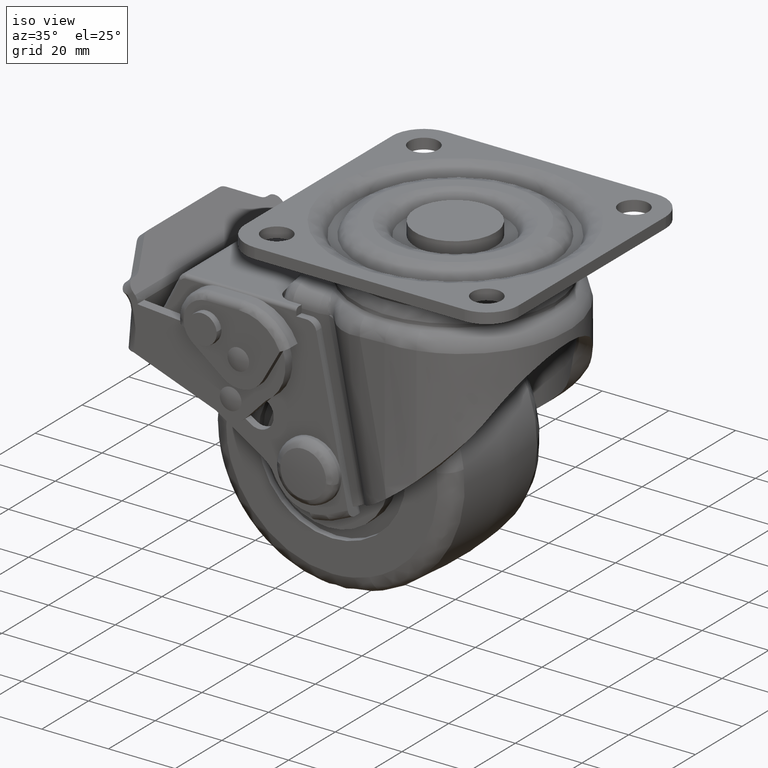
[diagram: clean part render]
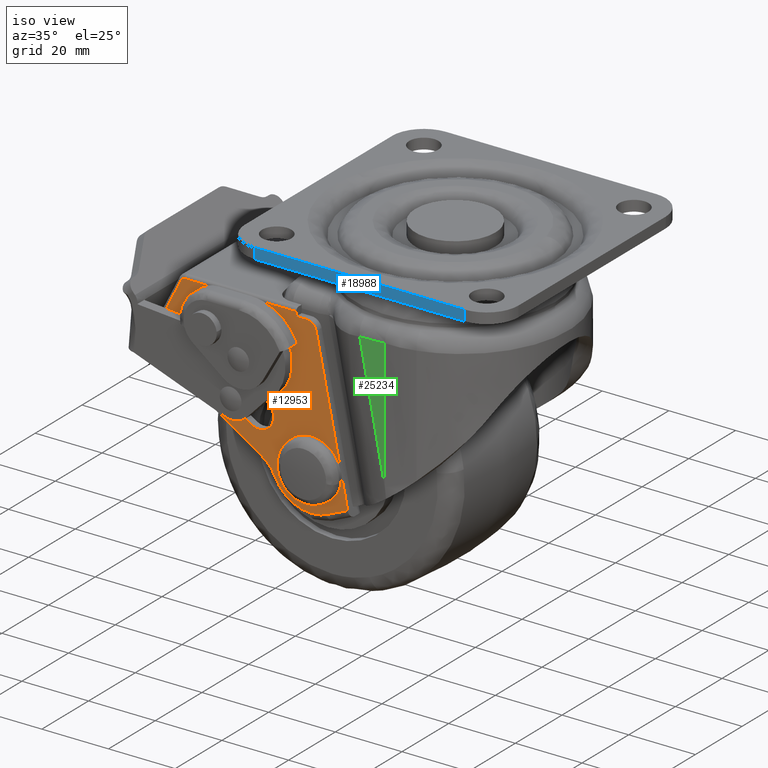
[diagram: same view with three faces highlighted in distinct colors, each labeled with its STEP entity id]
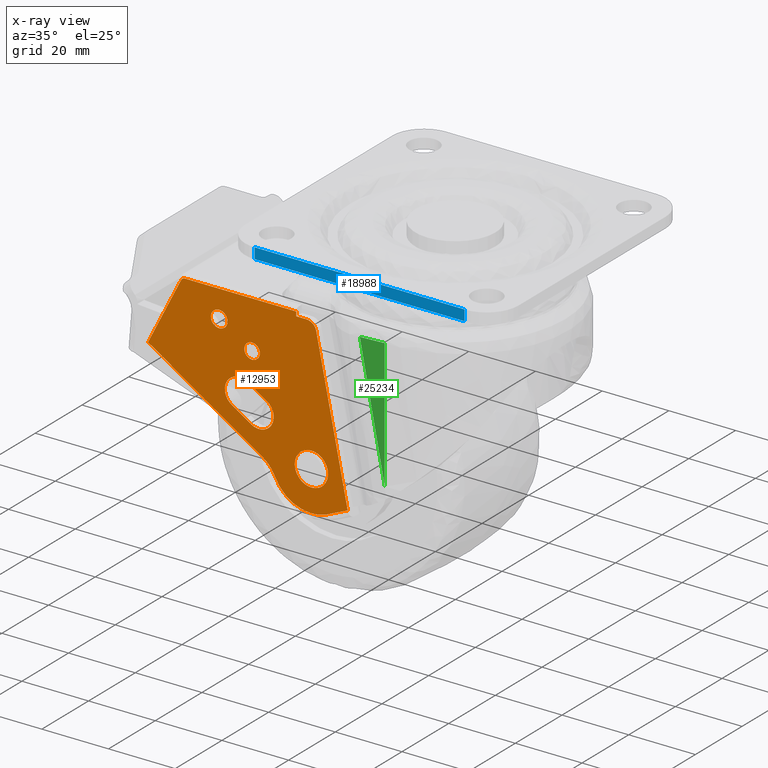
[diagram: x-ray of the same camera — body ghosted, the three highlighted faces saturated]
A machine part, iso view with three faces highlighted in distinct colors.
The next image is the same camera in x-ray (body ghosted, the three faces saturated) — at least one of them is partly hidden behind the body in this view.
Their STEP definitions:

[orange] entity #12953 — the highlighted face is a freeform B-spline surface patch.
#470=CARTESIAN_POINT('',(-19.182225218612540,-28.800003000033151,-59.271289596540242));
#471=VERTEX_POINT('',#470);
#477=CARTESIAN_POINT('',(-23.000003999999901,-28.800003000033151,-57.500000000000000));
#478=VERTEX_POINT('',#477);
#479=CARTESIAN_POINT('',(-19.182225218612540,-28.800003000033151,-59.271289596540242));
#480=CARTESIAN_POINT('',(-19.430549664640790,-28.800003000033190,-58.977574018722663));
#481=CARTESIAN_POINT('',(-20.061824300334191,-28.800003000033140,-58.385456959954091));
#482=CARTESIAN_POINT('',(-21.348549865061560,-28.800003000033151,-57.689776043577339));
#483=CARTESIAN_POINT('',(-22.411725075416300,-28.800003000033168,-57.499637516339057));
#484=CARTESIAN_POINT('',(-23.000003999999901,-28.800003000033151,-57.500000000000000));
#485=B_SPLINE_CURVE_WITH_KNOTS('',3,(#479,#480,#481,#482,#483,#484),.UNSPECIFIED.,.F.,.U.,(4,1,1,4),(0.000000083733639,1.153886714249226,2.579257753827360,4.344041918310372),.UNSPECIFIED.);
#486=EDGE_CURVE('',#471,#478,#485,.T.);
#488=CARTESIAN_POINT('',(-28.000003999999372,-28.800003000033151,-62.500002309261362));
#489=VERTEX_POINT('',#488);
#490=CARTESIAN_POINT('',(-23.000003999999901,-28.800003000033151,-57.500000000000000));
#491=CARTESIAN_POINT('',(-23.490900846761420,-28.800003000033168,-57.499765760812679));
#492=CARTESIAN_POINT('',(-24.308887725275341,-28.800003000033090,-57.621514613956442));
#493=CARTESIAN_POINT('',(-25.372178744088650,-28.800003000033190,-58.061969281661000));
#494=CARTESIAN_POINT('',(-26.329220638177571,-28.800003000033179,-58.701299593840567));
#495=CARTESIAN_POINT('',(-27.106818587050672,-28.800003000033069,-59.559086699657271));
#496=CARTESIAN_POINT('',(-27.610382942169458,-28.800003000033261,-60.501780975128987));
#497=CARTESIAN_POINT('',(-27.919206041393839,-28.800003000033080,-61.436501419941472));
#498=CARTESIAN_POINT('',(-28.000110931703720,-28.800003000033179,-62.090934227538007));
#499=CARTESIAN_POINT('',(-28.000003999999372,-28.800003000033151,-62.500002309261362));
#500=B_SPLINE_CURVE_WITH_KNOTS('',3,(#490,#491,#492,#493,#494,#495,#496,#497,#498,#499),.UNSPECIFIED.,.F.,.U.,(4,1,1,1,1,1,1,4),(0.000000072298293,1.472640215601783,2.454449904077587,3.436217526247638,4.908838442517602,5.890635036331644,6.626987902974555,7.854180023242981),.UNSPECIFIED.);
#501=EDGE_CURVE('',#478,#489,#500,.T.);
#503=CARTESIAN_POINT('',(-23.000003999999901,-28.800003000033151,-67.500000000000000));
#504=VERTEX_POINT('',#503);
#505=CARTESIAN_POINT('',(-28.000003999999372,-28.800003000033151,-62.500002309261362));
#506=CARTESIAN_POINT('',(-28.000092599785130,-28.800003000033179,-62.909057199884487));
#507=CARTESIAN_POINT('',(-27.909151223957331,-28.800003000033090,-63.645344305661283));
#508=CARTESIAN_POINT('',(-27.576751021200462,-28.800003000033211,-64.574135338505926));
#509=CARTESIAN_POINT('',(-27.051213396758211,-28.800003000033101,-65.502148333290307));
#510=CARTESIAN_POINT('',(-26.329287965827501,-28.800003000033200,-66.298778919152156));
#511=CARTESIAN_POINT('',(-25.440500711945919,-28.800003000033140,-66.892292151020754));
#512=CARTESIAN_POINT('',(-24.390591915604631,-28.800003000033151,-67.357881953827302));
#513=CARTESIAN_POINT('',(-23.572753076170251,-28.800003000033140,-67.500397117893996));
#514=CARTESIAN_POINT('',(-23.000003999999901,-28.800003000033151,-67.500000000000000));
#515=B_SPLINE_CURVE_WITH_KNOTS('',3,(#505,#506,#507,#508,#509,#510,#511,#512,#513,#514),.UNSPECIFIED.,.F.,.U.,(4,1,1,1,1,1,1,4),(0.000000075464952,1.227191788651748,2.208997705545032,2.945340678949254,4.417961106839302,5.399728402001202,6.136086377003252,7.854177420102268),.UNSPECIFIED.);
#516=EDGE_CURVE('',#489,#504,#515,.T.);
#518=CARTESIAN_POINT('',(-19.558231357139359,-28.800003000033151,-66.126871283849880));
#519=VERTEX_POINT('',#518);
#520=CARTESIAN_POINT('',(-23.000003999999901,-28.800003000033151,-67.500000000000000));
#521=CARTESIAN_POINT('',(-22.683665595570499,-28.800003000033190,-67.500033273683698));
#522=CARTESIAN_POINT('',(-22.011451466259341,-28.800003000033151,-67.435996765497478));
#523=CARTESIAN_POINT('',(-20.794348197121732,-28.800003000033161,-67.064246496186371));
#524=CARTESIAN_POINT('',(-19.988203382690980,-28.800003000033140,-66.535557591856900));
#525=CARTESIAN_POINT('',(-19.558231357139359,-28.800003000033151,-66.126871283849880));
#526=B_SPLINE_CURVE_WITH_KNOTS('',3,(#520,#521,#522,#523,#524,#525),.UNSPECIFIED.,.F.,.U.,(4,1,1,4),(0.000000046150387,0.949045069999652,2.016713160702636,3.796180141377348),.UNSPECIFIED.);
#527=EDGE_CURVE('',#504,#519,#526,.T.);
#611=CARTESIAN_POINT('',(-18.000004000000430,-28.800003000033151,-62.499997690738589));
#612=VERTEX_POINT('',#611);
#613=CARTESIAN_POINT('',(-19.558231357139359,-28.800003000033151,-66.126871283849880));
#614=CARTESIAN_POINT('',(-19.159342705930850,-28.800003000033161,-65.748843330306798));
#615=CARTESIAN_POINT('',(-18.617712099028800,-28.800003000033112,-65.030440328166804));
#616=CARTESIAN_POINT('',(-18.112859499213290,-28.800003000033168,-63.768009741241713));
#617=CARTESIAN_POINT('',(-17.999849246130349,-28.800003000033140,-62.964978881376332));
#618=CARTESIAN_POINT('',(-18.000004000000430,-28.800003000033151,-62.499997690738589));
#619=B_SPLINE_CURVE_WITH_KNOTS('',3,(#613,#614,#615,#616,#617,#618),.UNSPECIFIED.,.F.,.U.,(4,1,1,4),(0.000000035540567,1.648564023684898,2.663062688125875,4.058001091662141),.UNSPECIFIED.);
#620=EDGE_CURVE('',#519,#612,#619,.T.);
#622=CARTESIAN_POINT('',(-18.000004000000430,-28.800003000033151,-62.499997690738589));
#623=CARTESIAN_POINT('',(-17.999670845242200,-28.800003000033161,-61.951522516527803));
#624=CARTESIAN_POINT('',(-18.194511997907501,-28.800003000033140,-60.781765235982107));
#625=CARTESIAN_POINT('',(-18.780396537672161,-28.800003000033140,-59.745587923911593));
#626=CARTESIAN_POINT('',(-19.182225218612540,-28.800003000033151,-59.271289596540242));
#627=B_SPLINE_CURVE_WITH_KNOTS('',3,(#622,#623,#624,#625,#626),.UNSPECIFIED.,.F.,.U.,(4,1,4),(0.000000050138543,1.645345362522051,3.510041574508732),.UNSPECIFIED.);
#628=EDGE_CURVE('',#612,#471,#627,.T.);
#1243=CARTESIAN_POINT('',(-39.009788201272663,-28.800002999622770,-36.781688219832823));
#1244=VERTEX_POINT('',#1243);
#1245=CARTESIAN_POINT('',(-40.792335500078302,-28.800003000039901,-37.608714999999222));
#1246=VERTEX_POINT('',#1245);
#1247=CARTESIAN_POINT('',(-39.009788201272663,-28.800002999622770,-36.781688219832823));
#1248=CARTESIAN_POINT('',(-39.146167044533563,-28.800002999654719,-36.943071622230157));
#1249=CARTESIAN_POINT('',(-39.447316172728947,-28.800002999725180,-37.214046399845827));
#1250=CARTESIAN_POINT('',(-40.052987137345447,-28.800002999866809,-37.525702948710737));
#1251=CARTESIAN_POINT('',(-40.517639665508000,-28.800002999975710,-37.608931742379802));
#1252=CARTESIAN_POINT('',(-40.792335500078302,-28.800003000039901,-37.608714999999222));
#1253=B_SPLINE_CURVE_WITH_KNOTS('',3,(#1247,#1248,#1249,#1250,#1251,#1252),.UNSPECIFIED.,.F.,.U.,(4,1,1,4),(0.000000129910142,0.633857379844469,1.204289749375454,2.028309648248800),.UNSPECIFIED.);
#1254=EDGE_CURVE('',#1244,#1246,#1253,.T.);
#1309=CARTESIAN_POINT('',(-39.185349166687359,-28.800003000317648,-33.580770246850207));
#1310=VERTEX_POINT('',#1309);
#1316=CARTESIAN_POINT('',(-40.792335500078302,-28.800003000039901,-32.939647000000789));
#1317=VERTEX_POINT('',#1316);
#1318=CARTESIAN_POINT('',(-40.792335500078302,-28.800003000039901,-32.939647000000789));
#1319=CARTESIAN_POINT('',(-40.552322219122239,-28.800003000081400,-32.939552691493290));
#1320=CARTESIAN_POINT('',(-39.961517310858873,-28.800003000183469,-33.031499463409027));
#1321=CARTESIAN_POINT('',(-39.439493445901121,-28.800003000273730,-33.338794755439928));
#1322=CARTESIAN_POINT('',(-39.185349166687359,-28.800003000317648,-33.580770246850207));
#1323=B_SPLINE_CURVE_WITH_KNOTS('',3,(#1318,#1319,#1320,#1321,#1322),.UNSPECIFIED.,.F.,.U.,(4,1,4),(0.000000086503749,0.720067492481491,1.772461660205605),.UNSPECIFIED.);
#1324=EDGE_CURVE('',#1317,#1310,#1323,.T.);
#1326=CARTESIAN_POINT('',(-43.126869500075060,-28.800003000039901,-35.274177617762298));
#1327=VERTEX_POINT('',#1326);
#1328=CARTESIAN_POINT('',(-43.126869500075060,-28.800003000039901,-35.274177617762298));
#1329=CARTESIAN_POINT('',(-43.127129340548812,-28.800003000039890,-34.987640126093297));
#1330=CARTESIAN_POINT('',(-43.044918802445473,-28.800003000039929,-34.548566987964342));
#1331=CARTESIAN_POINT('',(-42.717115356458237,-28.800003000039951,-33.897066342863432));
#1332=CARTESIAN_POINT('',(-42.228056833608242,-28.800003000039791,-33.370376499318311));
#1333=CARTESIAN_POINT('',(-41.518097129718740,-28.800003000039979,-33.013288186558768));
#1334=CARTESIAN_POINT('',(-41.021521633293773,-28.800003000039990,-32.939578420668930));
#1335=CARTESIAN_POINT('',(-40.792335500078302,-28.800003000039901,-32.939647000000789));
#1336=B_SPLINE_CURVE_WITH_KNOTS('',3,(#1328,#1329,#1330,#1331,#1332,#1333,#1334,#1335),.UNSPECIFIED.,.F.,.U.,(4,1,1,1,1,4),(0.000000389996150,0.859493480363075,1.317917979247380,2.177354425387675,2.979588375734367,3.667167547280704),.UNSPECIFIED.);
#1337=EDGE_CURVE('',#1327,#1317,#1336,.T.);
#1339=CARTESIAN_POINT('',(-40.792335500078302,-28.800003000039901,-37.608714999999222));
#1340=CARTESIAN_POINT('',(-41.155376210122689,-28.800003000039879,-37.609403081502563));
#1341=CARTESIAN_POINT('',(-41.708599541972859,-28.800003000039919,-37.476834931297823));
#1342=CARTESIAN_POINT('',(-42.348592972570842,-28.800003000039869,-37.049054044992737));
#1343=CARTESIAN_POINT('',(-42.706047021308841,-28.800003000039979,-36.644779412495282));
#1344=CARTESIAN_POINT('',(-43.029641107283808,-28.800003000039709,-36.056979735137901));
#1345=CARTESIAN_POINT('',(-43.127312314192217,-28.800003000039929,-35.598961186192930));
#1346=CARTESIAN_POINT('',(-43.126869500075060,-28.800003000039901,-35.274177617762298));
#1347=B_SPLINE_CURVE_WITH_KNOTS('',3,(#1339,#1340,#1341,#1342,#1343,#1344,#1345,#1346),.UNSPECIFIED.,.F.,.U.,(4,1,1,1,1,4),(0.000000385371415,1.088698748090359,1.661714421387457,2.291945154213633,2.693075669383665,3.667171359946009),.UNSPECIFIED.);
#1348=EDGE_CURVE('',#1246,#1327,#1347,.T.);
#1367=CARTESIAN_POINT('',(-38.457801500081530,-28.800003000039901,-35.274184382237692));
#1368=VERTEX_POINT('',#1367);
#1369=CARTESIAN_POINT('',(-38.457801500081530,-28.800003000039901,-35.274184382237692));
#1370=CARTESIAN_POINT('',(-38.457477442661343,-28.800002999954899,-35.581511139457511));
#1371=CARTESIAN_POINT('',(-38.567317348052853,-28.800002999803759,-36.127493067114621));
#1372=CARTESIAN_POINT('',(-38.855384810069772,-28.800002999673278,-36.599251610762693));
#1373=CARTESIAN_POINT('',(-39.009788201272663,-28.800002999622770,-36.781688219832823));
#1374=B_SPLINE_CURVE_WITH_KNOTS('',3,(#1369,#1370,#1371,#1372,#1373),.UNSPECIFIED.,.F.,.U.,(4,1,4),(0.000000074653929,0.921841730195358,1.638860188304787),.UNSPECIFIED.);
#1375=EDGE_CURVE('',#1368,#1244,#1374,.T.);
#1377=CARTESIAN_POINT('',(-39.185349166687359,-28.800003000317648,-33.580770246850207));
#1378=CARTESIAN_POINT('',(-38.999114977615967,-28.800003000288712,-33.757284626822191));
#1379=CARTESIAN_POINT('',(-38.746202293098499,-28.800003000233701,-34.092692263682977));
#1380=CARTESIAN_POINT('',(-38.510505681958342,-28.800003000136950,-34.682139155104473));
#1381=CARTESIAN_POINT('',(-38.457720631580202,-28.800003000075549,-35.057076586072398));
#1382=CARTESIAN_POINT('',(-38.457801500081530,-28.800003000039901,-35.274184382237692));
#1383=B_SPLINE_CURVE_WITH_KNOTS('',3,(#1377,#1378,#1379,#1380,#1381,#1382),.UNSPECIFIED.,.F.,.U.,(4,1,1,4),(0.000000120672738,0.769732398257583,1.243389250802745,1.894710818380581),.UNSPECIFIED.);
#1384=EDGE_CURVE('',#1310,#1368,#1383,.T.);
#2840=CARTESIAN_POINT('',(-52.337384112917213,-28.800003000028681,-27.371924067843189));
#2841=VERTEX_POINT('',#2840);
#2847=CARTESIAN_POINT('',(-53.157768200141533,-28.800003000033101,-29.223651168886722));
#2848=VERTEX_POINT('',#2847);
#2849=CARTESIAN_POINT('',(-52.337384112917213,-28.800003000028681,-27.371924067843189));
#2850=CARTESIAN_POINT('',(-52.611322206015942,-28.800003000029310,-27.619651648432690));
#2851=CARTESIAN_POINT('',(-53.019916073954413,-28.800003000030561,-28.202985685046851));
#2852=CARTESIAN_POINT('',(-53.158064000434351,-28.800003000032429,-28.897778857096991));
#2853=CARTESIAN_POINT('',(-53.157768200141533,-28.800003000033101,-29.223651168886722));
#2854=B_SPLINE_CURVE_WITH_KNOTS('',3,(#2849,#2850,#2851,#2852,#2853),.UNSPECIFIED.,.F.,.U.,(4,1,4),(0.000000113703661,1.107791574617974,2.085303933818207),.UNSPECIFIED.);
#2855=EDGE_CURVE('',#2841,#2848,#2854,.T.);
#2857=CARTESIAN_POINT('',(-50.657771200143699,-28.800003000033101,-31.723645000000040));
#2858=VERTEX_POINT('',#2857);
#2859=CARTESIAN_POINT('',(-53.157768200141533,-28.800003000033101,-29.223651168886722));
#2860=CARTESIAN_POINT('',(-53.158444155121622,-28.800003000033129,-29.612415826495930));
#2861=CARTESIAN_POINT('',(-53.031313956230044,-28.800003000033112,-30.143574763229861));
#2862=CARTESIAN_POINT('',(-52.654114384786531,-28.800003000033030,-30.755190357979320));
#2863=CARTESIAN_POINT('',(-52.304046892941862,-28.800003000033431,-31.132136486327930));
#2864=CARTESIAN_POINT('',(-51.828935499960217,-28.800003000032710,-31.458113644831240));
#2865=CARTESIAN_POINT('',(-51.271348630560077,-28.800003000033371,-31.673181114356620));
#2866=CARTESIAN_POINT('',(-50.862301314687564,-28.800003000032991,-31.723688143568580));
#2867=CARTESIAN_POINT('',(-50.657771200143699,-28.800003000033101,-31.723645000000040));
#2868=B_SPLINE_CURVE_WITH_KNOTS('',3,(#2859,#2860,#2861,#2862,#2863,#2864,#2865,#2866,#2867),.UNSPECIFIED.,.F.,.U.,(4,1,1,1,1,1,4),(0.000000417285364,1.165855716178494,1.595406065713323,2.147601025782506,2.699853915923455,3.313485961578592,3.927082862289125),.UNSPECIFIED.);
#2869=EDGE_CURVE('',#2848,#2858,#2868,.T.);
#2871=CARTESIAN_POINT('',(-48.157774200145873,-28.800003000033101,-29.223644831113671));
#2872=VERTEX_POINT('',#2871);
#2873=CARTESIAN_POINT('',(-50.657771200143699,-28.800003000033101,-31.723645000000040));
#2874=CARTESIAN_POINT('',(-50.412345441744982,-28.800003000033140,-31.723716910189051));
#2875=CARTESIAN_POINT('',(-49.880530380152237,-28.800003000032980,-31.644837152610080));
#2876=CARTESIAN_POINT('',(-49.231693262726630,-28.800003000033229,-31.318212167404649));
#2877=CARTESIAN_POINT('',(-48.673789049995030,-28.800003000033112,-30.799939486153729));
#2878=CARTESIAN_POINT('',(-48.268319868745174,-28.800003000032859,-30.123460495498730));
#2879=CARTESIAN_POINT('',(-48.157524506041987,-28.800003000033289,-29.530469988603681));
#2880=CARTESIAN_POINT('',(-48.157774200145873,-28.800003000033101,-29.223644831113671));
#2881=B_SPLINE_CURVE_WITH_KNOTS('',3,(#2873,#2874,#2875,#2876,#2877,#2878,#2879,#2880),.UNSPECIFIED.,.F.,.U.,(4,1,1,1,1,4),(0.000000412951457,0.736313362275878,1.595407516369852,2.147602986632261,3.006679340017775,3.927086434451940),.UNSPECIFIED.);
#2882=EDGE_CURVE('',#2858,#2872,#2881,.T.);
#2884=CARTESIAN_POINT('',(-50.126826960693620,-28.800003000033101,-26.780681594434238));
#2885=VERTEX_POINT('',#2884);
#2886=CARTESIAN_POINT('',(-48.157774200145873,-28.800003000033101,-29.223644831113671));
#2887=CARTESIAN_POINT('',(-48.157457452544932,-28.800003000033129,-28.905590091523759));
#2888=CARTESIAN_POINT('',(-48.260355109475412,-28.800003000033090,-28.375860764198361));
#2889=CARTESIAN_POINT('',(-48.642074424845127,-28.800003000033112,-27.691443871973942));
#2890=CARTESIAN_POINT('',(-49.222471128783653,-28.800003000033161,-27.109840012142641));
#2891=CARTESIAN_POINT('',(-49.781359547123458,-28.800003000032920,-26.855248439455391));
#2892=CARTESIAN_POINT('',(-50.126826960693620,-28.800003000033101,-26.780681594434238));
#2893=B_SPLINE_CURVE_WITH_KNOTS('',3,(#2886,#2887,#2888,#2889,#2890,#2891,#2892),.UNSPECIFIED.,.F.,.U.,(4,1,1,1,4),(0.000000300133603,0.954014956945373,1.590050598525471,2.332011365136532,3.392027923581900),.UNSPECIFIED.);
#2894=EDGE_CURVE('',#2872,#2885,#2893,.T.);
#2928=CARTESIAN_POINT('',(-50.657771200143699,-28.800003000033101,-26.723651000000359));
#2929=VERTEX_POINT('',#2928);
#2930=CARTESIAN_POINT('',(-50.126826960693620,-28.800003000033101,-26.780681594434238));
#2931=CARTESIAN_POINT('',(-50.301091701832817,-28.800003000033129,-26.742795960993451));
#2932=CARTESIAN_POINT('',(-50.479437135484190,-28.800003000033101,-26.723621848038171));
#2933=CARTESIAN_POINT('',(-50.657771200143699,-28.800003000033101,-26.723651000000359));
#2934=B_SPLINE_CURVE_WITH_KNOTS('',3,(#2930,#2931,#2932,#2933),.UNSPECIFIED.,.F.,.U.,(4,4),(8.925370E-009,0.535034725867718),.UNSPECIFIED.);
#2935=EDGE_CURVE('',#2885,#2929,#2934,.T.);
#2937=CARTESIAN_POINT('',(-50.657771200143699,-28.800003000033101,-26.723651000000359));
#2938=CARTESIAN_POINT('',(-51.022395261726643,-28.800003000032302,-26.723085073283560));
#2939=CARTESIAN_POINT('',(-51.635749826504131,-28.800003000030141,-26.860479986247221));
#2940=CARTESIAN_POINT('',(-52.152708889660111,-28.800003000029491,-27.204303135973849));
#2941=CARTESIAN_POINT('',(-52.337384112917213,-28.800003000028681,-27.371924067843189));
#2942=B_SPLINE_CURVE_WITH_KNOTS('',3,(#2937,#2938,#2939,#2940,#2941),.UNSPECIFIED.,.F.,.U.,(4,1,4),(0.000000079734092,1.093554760593407,1.841784399474672),.UNSPECIFIED.);
#2943=EDGE_CURVE('',#2929,#2841,#2942,.T.);
#9515=CARTESIAN_POINT('',(-42.211710186612102,-28.800003000033151,-43.921208639314393));
#9516=VERTEX_POINT('',#9515);
#9522=CARTESIAN_POINT('',(-48.292777666159800,-28.800003000033151,-45.384414982974022));
#9523=VERTEX_POINT('',#9522);
#9524=CARTESIAN_POINT('',(-42.211710186612102,-28.800003000033151,-43.921208639314393));
#9525=CARTESIAN_POINT('',(-42.551819374615029,-28.800003000033190,-43.715719765374843));
#9526=CARTESIAN_POINT('',(-43.187228178315912,-28.800003000033101,-43.440400573237142));
#9527=CARTESIAN_POINT('',(-44.151749195513872,-28.800003000033229,-43.267015905845717));
#9528=CARTESIAN_POINT('',(-45.022649306480467,-28.800003000033069,-43.281856624099092));
#9529=CARTESIAN_POINT('',(-46.087354876460182,-28.800003000033410,-43.510318789652672));
#9530=CARTESIAN_POINT('',(-47.290197680057098,-28.800003000032429,-44.136296549608282));
#9531=CARTESIAN_POINT('',(-48.007453419999507,-28.800003000034309,-44.923708247930172));
#9532=CARTESIAN_POINT('',(-48.292777666159800,-28.800003000033151,-45.384414982974022));
#9533=B_SPLINE_CURVE_WITH_KNOTS('',3,(#9524,#9525,#9526,#9527,#9528,#9529,#9530,#9531,#9532),.UNSPECIFIED.,.F.,.U.,(4,1,1,1,1,1,4),(0.000000173772180,1.192081536553413,2.059063708823484,2.926075878605722,3.792948166626149,5.310196065454020,6.935759377003172),.UNSPECIFIED.);
#9534=EDGE_CURVE('',#9516,#9523,#9533,.T.);
#9536=CARTESIAN_POINT('',(-46.904097079557197,-28.800003000033151,-51.482929253938103));
#9537=VERTEX_POINT('',#9536);
#9538=CARTESIAN_POINT('',(-48.292777666159800,-28.800003000033151,-45.384414982974022));
#9539=CARTESIAN_POINT('',(-48.578871453422970,-28.800003000033151,-45.844626978198157));
#9540=CARTESIAN_POINT('',(-48.939341319607692,-28.800003000033179,-46.768450309692817));
#9541=CARTESIAN_POINT('',(-48.998687611810823,-28.800003000033119,-48.118008780970179));
#9542=CARTESIAN_POINT('',(-48.756150492634383,-28.800003000033179,-49.182488073095108));
#9543=CARTESIAN_POINT('',(-48.382682023528602,-28.800003000033151,-49.969413547828360));
#9544=CARTESIAN_POINT('',(-47.819652287663907,-28.800003000033151,-50.769035018060549));
#9545=CARTESIAN_POINT('',(-47.300242985043582,-28.800003000033151,-51.230681600299718));
#9546=CARTESIAN_POINT('',(-46.904097079557197,-28.800003000033151,-51.482929253938103));
#9547=B_SPLINE_CURVE_WITH_KNOTS('',3,(#9538,#9539,#9540,#9541,#9542,#9543,#9544,#9545,#9546),.UNSPECIFIED.,.F.,.U.,(4,1,1,1,1,1,4),(0.000000173760201,1.625562315638556,2.926073773059990,4.009680787052242,4.876692332915885,5.526939333491731,6.935754386351213),.UNSPECIFIED.);
#9548=EDGE_CURVE('',#9523,#9537,#9547,.T.);
#9600=CARTESIAN_POINT('',(-41.138822021951597,-28.800003000033151,-55.165349590048898));
#9601=VERTEX_POINT('',#9600);
#9602=CARTESIAN_POINT('',(-41.138822021951597,-28.800003000033151,-55.165349590048898));
#9603=CARTESIAN_POINT('',(-46.904097079557197,-28.800003000033151,-51.482929253938103));
#9604=QUASI_UNIFORM_CURVE('',1,(#9602,#9603),.UNSPECIFIED.,.F.,.U.);
#9605=EDGE_CURVE('',#9601,#9537,#9604,.T.);
#9634=CARTESIAN_POINT('',(-35.021722907069339,-28.800003000033151,-53.860952061054981));
#9635=VERTEX_POINT('',#9634);
#9636=CARTESIAN_POINT('',(-41.138822021951597,-28.800003000033151,-55.165349590048898));
#9637=CARTESIAN_POINT('',(-40.895424416512853,-28.800003000033129,-55.321110189126117));
#9638=CARTESIAN_POINT('',(-40.345805906464030,-28.800003000033190,-55.601531574035853));
#9639=CARTESIAN_POINT('',(-39.539112853472083,-28.800003000033161,-55.820250131705379));
#9640=CARTESIAN_POINT('',(-38.708862975162802,-28.800003000033161,-55.888519777436727));
#9641=CARTESIAN_POINT('',(-37.696451015928623,-28.800003000033090,-55.799285360150520));
#9642=CARTESIAN_POINT('',(-36.597372268193887,-28.800003000033399,-55.390217570008389));
#9643=CARTESIAN_POINT('',(-35.640321686926761,-28.800003000032952,-54.664690103535378));
#9644=CARTESIAN_POINT('',(-35.200232317387659,-28.800003000033250,-54.132658721448969));
#9645=CARTESIAN_POINT('',(-35.021722907069339,-28.800003000033151,-53.860952061054981));
#9646=B_SPLINE_CURVE_WITH_KNOTS('',3,(#9636,#9637,#9638,#9639,#9640,#9641,#9642,#9643,#9644,#9645),.UNSPECIFIED.,.F.,.U.,(4,1,1,1,1,1,1,4),(0.000000173763521,0.866935810443991,1.842316463833672,2.492562332558443,3.359528236832713,4.876695841948459,5.960441934178076,6.935759377003253),.UNSPECIFIED.);
#9647=EDGE_CURVE('',#9601,#9635,#9646,.T.);
#9649=CARTESIAN_POINT('',(-36.251165733300247,-28.800003000033151,-47.728352251692897));
#9650=VERTEX_POINT('',#9649);
#9651=CARTESIAN_POINT('',(-35.021722907069339,-28.800003000033151,-53.860952061054981));
#9652=CARTESIAN_POINT('',(-34.803391278850157,-28.800003000033151,-53.528955906364253));
#9653=CARTESIAN_POINT('',(-34.440777941163063,-28.800003000033129,-52.773100035540530));
#9654=CARTESIAN_POINT('',(-34.252048326787602,-28.800003000033190,-51.657182922069417));
#9655=CARTESIAN_POINT('',(-34.329548240089757,-28.800003000033090,-50.643860964678403));
#9656=CARTESIAN_POINT('',(-34.601295441175090,-28.800003000033190,-49.664596893928810));
#9657=CARTESIAN_POINT('',(-35.194184453474882,-28.800003000033161,-48.615775003376143));
#9658=CARTESIAN_POINT('',(-35.861744890243934,-28.800003000033151,-47.990840804202293));
#9659=CARTESIAN_POINT('',(-36.251165733300247,-28.800003000033151,-47.728352251692897));
#9660=B_SPLINE_CURVE_WITH_KNOTS('',3,(#9651,#9652,#9653,#9654,#9655,#9656,#9657,#9658,#9659),.UNSPECIFIED.,.F.,.U.,(4,1,1,1,1,1,4),(0.000000173764626,1.192080678791720,2.492560538983799,3.359525819451404,4.226432219014187,5.526939333492035,6.935754386351118),.UNSPECIFIED.);
#9661=EDGE_CURVE('',#9635,#9650,#9660,.T.);
#9710=CARTESIAN_POINT('',(-42.211710186612102,-28.800003000033151,-43.921208639314393));
#9711=CARTESIAN_POINT('',(-36.251165733300247,-28.800003000033151,-47.728352251692897));
#9712=QUASI_UNIFORM_CURVE('',1,(#9710,#9711),.UNSPECIFIED.,.F.,.U.);
#9713=EDGE_CURVE('',#9516,#9650,#9712,.T.);
#10110=CARTESIAN_POINT('',(-60.913524999999900,-28.800003000033101,-21.0));
#10111=VERTEX_POINT('',#10110);
#10135=CARTESIAN_POINT('',(-62.071833584451902,-28.800003000033101,-21.709811552501701));
#10136=VERTEX_POINT('',#10135);
#10147=CARTESIAN_POINT('',(-60.913524999999900,-28.800003000033101,-21.0));
#10148=CARTESIAN_POINT('',(-61.077342806744767,-28.800003000033161,-20.999844401069701));
#10149=CARTESIAN_POINT('',(-61.360120627906241,-28.800003000032991,-21.054212306694129));
#10150=CARTESIAN_POINT('',(-61.778664936651531,-28.800003000033271,-21.291277223118449));
#10151=CARTESIAN_POINT('',(-61.984212921971448,-28.800003000032920,-21.537137480433788));
#10152=CARTESIAN_POINT('',(-62.071833584451902,-28.800003000033101,-21.709811552501701));
#10153=B_SPLINE_CURVE_WITH_KNOTS('',3,(#10147,#10148,#10149,#10150,#10151,#10152),.UNSPECIFIED.,.F.,.U.,(4,1,1,4),(0.000000303852804,0.491409712786398,0.848753531053720,1.429494819401195),.UNSPECIFIED.);
#10154=EDGE_CURVE('',#10111,#10136,#10153,.T.);
#10173=CARTESIAN_POINT('',(-72.030353474294301,-28.800003000033101,-41.254501995493847));
#10174=VERTEX_POINT('',#10173);
#10187=CARTESIAN_POINT('',(-62.071833584451902,-28.800003000033101,-21.709811552501701));
#10188=CARTESIAN_POINT('',(-72.030353474294301,-28.800003000033101,-41.254501995493847));
#10189=QUASI_UNIFORM_CURVE('',1,(#10187,#10188),.UNSPECIFIED.,.F.,.U.);
#10190=EDGE_CURVE('',#10136,#10174,#10189,.T.);
#10217=CARTESIAN_POINT('',(-27.546669000000001,-28.800003000033101,-21.0));
#10218=VERTEX_POINT('',#10217);
#10235=CARTESIAN_POINT('',(-27.546669000000001,-28.800003000033101,-21.0));
#10236=CARTESIAN_POINT('',(-60.913524999999900,-28.800003000033101,-21.0));
#10237=QUASI_UNIFORM_CURVE('',1,(#10235,#10236),.UNSPECIFIED.,.F.,.U.);
#10238=EDGE_CURVE('',#10218,#10111,#10237,.T.);
#11399=CARTESIAN_POINT('',(-18.548441480784248,-28.800003000033101,-73.643771287864297));
#11400=VERTEX_POINT('',#11399);
#11412=CARTESIAN_POINT('',(-23.448709393947748,-28.800003000033151,-74.491608043521396));
#11413=VERTEX_POINT('',#11412);
#11414=CARTESIAN_POINT('',(-23.448709393947748,-28.800003000033151,-74.491608043521396));
#11415=CARTESIAN_POINT('',(-22.875124499108608,-28.800003000033090,-74.513079712323531));
#11416=CARTESIAN_POINT('',(-21.201996714995978,-28.800003000033239,-74.455646114283141));
#11417=CARTESIAN_POINT('',(-19.565941687580519,-28.800003000033222,-74.050710274984411));
#11418=CARTESIAN_POINT('',(-18.548441480784248,-28.800003000033101,-73.643771287864297));
#11419=B_SPLINE_CURVE_WITH_KNOTS('',3,(#11414,#11415,#11416,#11417,#11418),.UNSPECIFIED.,.F.,.U.,(4,1,4),(0.000000012893365,1.721983476884519,5.009401752587221),.UNSPECIFIED.);
#11420=EDGE_CURVE('',#11413,#11400,#11419,.T.);
#11447=CARTESIAN_POINT('',(-12.113334239899199,-28.800003000033101,-70.804092859590099));
#11448=VERTEX_POINT('',#11447);
#11484=CARTESIAN_POINT('',(-18.548441480784248,-28.800003000033101,-73.643771287864297));
#11485=CARTESIAN_POINT('',(-16.370673037733010,-28.800003000033090,-72.773833660740294));
#11486=CARTESIAN_POINT('',(-14.223828853531380,-28.800003000033129,-71.826479726092899));
#11487=CARTESIAN_POINT('',(-12.113334239899199,-28.800003000033101,-70.804092859590099));
#11488=B_SPLINE_CURVE_WITH_KNOTS('',3,(#11484,#11485,#11486,#11487),.UNSPECIFIED.,.F.,.U.,(4,4),(1.033476E-010,7.035288617569322),.UNSPECIFIED.);
#11489=EDGE_CURVE('',#11400,#11448,#11488,.T.);
#11745=CARTESIAN_POINT('',(-33.932457852330351,-28.800003000033151,-67.447876127306898));
#11746=VERTEX_POINT('',#11745);
#11747=CARTESIAN_POINT('',(-33.932457852330351,-28.800003000033151,-67.447876127306898));
#11748=CARTESIAN_POINT('',(-33.447359467861851,-28.800003000033080,-68.521061793448638));
#11749=CARTESIAN_POINT('',(-32.308995707056603,-28.800003000033179,-70.286686819580041));
#11750=CARTESIAN_POINT('',(-30.221704807664999,-28.800003000033271,-72.188017368226326));
#11751=CARTESIAN_POINT('',(-28.426684641526919,-28.800003000033101,-73.252364724099181));
#11752=CARTESIAN_POINT('',(-26.243089185487921,-28.800003000033129,-74.145255083071532));
#11753=CARTESIAN_POINT('',(-24.625656276825211,-28.800003000033279,-74.448121537696025));
#11754=CARTESIAN_POINT('',(-23.448709393947748,-28.800003000033151,-74.491608043521396));
#11755=B_SPLINE_CURVE_WITH_KNOTS('',3,(#11747,#11748,#11749,#11750,#11751,#11752,#11753,#11754),.UNSPECIFIED.,.F.,.U.,(4,1,1,1,1,4),(0.000000085323194,3.533015170619722,6.234754609331970,8.416879843596117,9.767744017290843,13.300759102595350),.UNSPECIFIED.);
#11756=EDGE_CURVE('',#11746,#11413,#11755,.T.);
#11794=CARTESIAN_POINT('',(-37.659322299999893,-28.800003000033151,-63.143894000000103));
#11795=VERTEX_POINT('',#11794);
#11796=CARTESIAN_POINT('',(-33.932457852330351,-28.800003000033151,-67.447876127306898));
#11797=CARTESIAN_POINT('',(-34.155604637384769,-28.800003000033151,-66.954789220147475));
#11798=CARTESIAN_POINT('',(-34.769875672231400,-28.800003000033129,-65.846581177467343));
#11799=CARTESIAN_POINT('',(-36.010369328306673,-28.800003000033179,-64.360660285723284));
#11800=CARTESIAN_POINT('',(-37.101824357832243,-28.800003000033151,-63.499963853744021));
#11801=CARTESIAN_POINT('',(-37.659322299999893,-28.800003000033151,-63.143894000000103));
#11802=B_SPLINE_CURVE_WITH_KNOTS('',3,(#11796,#11797,#11798,#11799,#11800,#11801),.UNSPECIFIED.,.F.,.U.,(4,1,1,4),(0.000000012448600,1.623720366744469,3.788680583489553,5.773227849450052),.UNSPECIFIED.);
#11803=EDGE_CURVE('',#11746,#11795,#11802,.T.);
#11839=CARTESIAN_POINT('',(-27.546669000000001,-28.800003000033151,-22.299999000000149));
#11840=VERTEX_POINT('',#11839);
#11846=CARTESIAN_POINT('',(-24.491158157079500,-28.800003000033151,-22.299999000000149));
#11847=VERTEX_POINT('',#11846);
#11848=CARTESIAN_POINT('',(-24.491158157079500,-28.800003000033151,-22.299999000000149));
#11849=CARTESIAN_POINT('',(-27.546669000000001,-28.800003000033151,-22.299999000000149));
#11850=QUASI_UNIFORM_CURVE('',1,(#11848,#11849),.UNSPECIFIED.,.F.,.U.);
#11851=EDGE_CURVE('',#11847,#11840,#11850,.T.);
#11875=CARTESIAN_POINT('',(-21.551419686323900,-28.800003000033151,-24.701719260158651));
#11876=VERTEX_POINT('',#11875);
#11877=CARTESIAN_POINT('',(-21.551419686323900,-28.800003000033151,-24.701719260158651));
#11878=CARTESIAN_POINT('',(-21.611075944284611,-28.800003000033151,-24.408013836384530));
#11879=CARTESIAN_POINT('',(-21.811996470049209,-28.800003000033211,-23.859133053272220));
#11880=CARTESIAN_POINT('',(-22.263551400171259,-28.800003000033069,-23.252172452532449));
#11881=CARTESIAN_POINT('',(-22.786604763543082,-28.800003000033261,-22.805937347144798));
#11882=CARTESIAN_POINT('',(-23.485293144098200,-28.800003000033101,-22.421323604106981));
#11883=CARTESIAN_POINT('',(-24.105771621756531,-28.800003000033229,-22.299599815691391));
#11884=CARTESIAN_POINT('',(-24.491158157079500,-28.800003000033151,-22.299999000000149));
#11885=B_SPLINE_CURVE_WITH_KNOTS('',3,(#11877,#11878,#11879,#11880,#11881,#11882,#11883,#11884),.UNSPECIFIED.,.F.,.U.,(4,1,1,1,1,4),(0.000000292077730,0.899090596978837,1.734009779418266,2.247737278879721,2.954165183682024,4.110149465484533),.UNSPECIFIED.);
#11886=EDGE_CURVE('',#11876,#11847,#11885,.T.);
#11915=CARTESIAN_POINT('',(-12.113334239899199,-28.800003000033101,-70.804092859590099));
#11916=CARTESIAN_POINT('',(-21.551419686323900,-28.800003000033151,-24.701719260158651));
#11917=QUASI_UNIFORM_CURVE('',1,(#11915,#11916),.UNSPECIFIED.,.F.,.U.);
#11918=EDGE_CURVE('',#11448,#11876,#11917,.T.);
#11938=CARTESIAN_POINT('',(-71.187220890379308,-28.800003000033101,-41.725415164883003));
#11939=VERTEX_POINT('',#11938);
#11963=CARTESIAN_POINT('',(-71.187220890379308,-28.800003000033101,-41.725415164883003));
#11964=CARTESIAN_POINT('',(-37.659322299999893,-28.800003000033151,-63.143894000000103));
#11965=QUASI_UNIFORM_CURVE('',1,(#11963,#11964),.UNSPECIFIED.,.F.,.U.);
#11966=EDGE_CURVE('',#11939,#11795,#11965,.T.);
#12340=CARTESIAN_POINT('',(-71.252342049434404,-28.800003000033101,-41.815695911516848));
#12341=VERTEX_POINT('',#12340);
#12355=CARTESIAN_POINT('',(-71.187220890379308,-28.800003000033101,-41.725415164883003));
#12356=CARTESIAN_POINT('',(-71.252342049434404,-28.800003000033101,-41.815695911516848));
#12357=QUASI_UNIFORM_CURVE('',1,(#12355,#12356),.UNSPECIFIED.,.F.,.U.);
#12358=EDGE_CURVE('',#11939,#12341,#12357,.T.);
#12592=CARTESIAN_POINT('',(-72.030353474294301,-28.800003000033101,-41.254501995493847));
#12593=CARTESIAN_POINT('',(-71.252342049434404,-28.800003000033101,-41.815695911516848));
#12594=QUASI_UNIFORM_CURVE('',1,(#12592,#12593),.UNSPECIFIED.,.F.,.U.);
#12595=EDGE_CURVE('',#10174,#12341,#12594,.T.);
#12896=CARTESIAN_POINT('',(-75.023204531714782,-28.800003000033101,-18.327680940558601));
#12897=CARTESIAN_POINT('',(-9.120477825479750,-28.800003000033101,-18.327680940558601));
#12898=CARTESIAN_POINT('',(-75.023204531714782,-28.800003000033101,-77.172203640257123));
#12899=CARTESIAN_POINT('',(-9.120477825479750,-28.800003000033101,-77.172203640257123));
#12900=B_SPLINE_SURFACE_WITH_KNOTS('',1,1,((#12896,#12898),(#12897,#12899)),.UNSPECIFIED.,.F.,.F.,.U.,(2,2),(2,2),(0.0,65.902726706235029),(0.0,58.844522699698523),.UNSPECIFIED.);
#12901=ORIENTED_EDGE('',*,*,#10154,.T.);
#12902=ORIENTED_EDGE('',*,*,#10190,.T.);
#12903=ORIENTED_EDGE('',*,*,#12595,.T.);
#12904=ORIENTED_EDGE('',*,*,#12358,.F.);
#12905=ORIENTED_EDGE('',*,*,#11966,.T.);
#12906=ORIENTED_EDGE('',*,*,#11803,.F.);
#12907=ORIENTED_EDGE('',*,*,#11756,.T.);
#12908=ORIENTED_EDGE('',*,*,#11420,.T.);
#12909=ORIENTED_EDGE('',*,*,#11489,.T.);
#12910=ORIENTED_EDGE('',*,*,#11918,.T.);
#12911=ORIENTED_EDGE('',*,*,#11886,.T.);
#12912=ORIENTED_EDGE('',*,*,#11851,.T.);
#12913=CARTESIAN_POINT('',(-27.546669000000001,-28.800003000033151,-22.299999000000149));
#12914=CARTESIAN_POINT('',(-27.546669000000001,-28.800003000033101,-21.0));
#12915=QUASI_UNIFORM_CURVE('',1,(#12913,#12914),.UNSPECIFIED.,.F.,.U.);
#12916=EDGE_CURVE('',#11840,#10218,#12915,.T.);
#12917=ORIENTED_EDGE('',*,*,#12916,.T.);
#12918=ORIENTED_EDGE('',*,*,#10238,.T.);
#12919=EDGE_LOOP('',(#12901,#12902,#12903,#12904,#12905,#12906,#12907,#12908,#12909,#12910,#12911,#12912,#12917,#12918));
#12920=FACE_OUTER_BOUND('',#12919,.T.);
#12921=ORIENTED_EDGE('',*,*,#9713,.T.);
#12922=ORIENTED_EDGE('',*,*,#9661,.F.);
#12923=ORIENTED_EDGE('',*,*,#9647,.F.);
#12924=ORIENTED_EDGE('',*,*,#9605,.T.);
#12925=ORIENTED_EDGE('',*,*,#9548,.F.);
#12926=ORIENTED_EDGE('',*,*,#9534,.F.);
#12927=EDGE_LOOP('',(#12921,#12922,#12923,#12924,#12925,#12926));
#12928=FACE_BOUND('',#12927,.T.);
#12929=ORIENTED_EDGE('',*,*,#501,.F.);
#12930=ORIENTED_EDGE('',*,*,#486,.F.);
#12931=ORIENTED_EDGE('',*,*,#628,.F.);
#12932=ORIENTED_EDGE('',*,*,#620,.F.);
#12933=ORIENTED_EDGE('',*,*,#527,.F.);
#12934=ORIENTED_EDGE('',*,*,#516,.F.);
#12935=EDGE_LOOP('',(#12929,#12930,#12931,#12932,#12933,#12934));
#12936=FACE_BOUND('',#12935,.T.);
#12937=ORIENTED_EDGE('',*,*,#2869,.F.);
#12938=ORIENTED_EDGE('',*,*,#2855,.F.);
#12939=ORIENTED_EDGE('',*,*,#2943,.F.);
#12940=ORIENTED_EDGE('',*,*,#2935,.F.);
#12941=ORIENTED_EDGE('',*,*,#2894,.F.);
#12942=ORIENTED_EDGE('',*,*,#2882,.F.);
#12943=EDGE_LOOP('',(#12937,#12938,#12939,#12940,#12941,#12942));
#12944=FACE_BOUND('',#12943,.T.);
#12945=ORIENTED_EDGE('',*,*,#1348,.T.);
#12946=ORIENTED_EDGE('',*,*,#1337,.T.);
#12947=ORIENTED_EDGE('',*,*,#1324,.T.);
#12948=ORIENTED_EDGE('',*,*,#1384,.T.);
#12949=ORIENTED_EDGE('',*,*,#1375,.T.);
#12950=ORIENTED_EDGE('',*,*,#1254,.T.);
#12951=EDGE_LOOP('',(#12945,#12946,#12947,#12948,#12949,#12950));
#12952=FACE_BOUND('',#12951,.T.);
#12953=ADVANCED_FACE('',(#12920,#12928,#12936,#12944,#12952),#12900,.F.);

[blue] entity #18988 — the highlighted face is a freeform B-spline surface patch.
#18813=CARTESIAN_POINT('',(-31.499995025812201,-40.999999999998700,0.0));
#18814=VERTEX_POINT('',#18813);
#18829=CARTESIAN_POINT('',(31.500000000000000,-41.0,0.0));
#18830=VERTEX_POINT('',#18829);
#18831=CARTESIAN_POINT('',(-31.499995025812201,-40.999999999998700,0.0));
#18832=CARTESIAN_POINT('',(31.500000000000000,-41.0,0.0));
#18833=QUASI_UNIFORM_CURVE('',1,(#18831,#18832),.UNSPECIFIED.,.F.,.U.);
#18834=EDGE_CURVE('',#18814,#18830,#18833,.T.);
#18942=CARTESIAN_POINT('',(31.500000000000000,-41.0,-3.200000000000000));
#18943=VERTEX_POINT('',#18942);
#18944=CARTESIAN_POINT('',(31.500000000000000,-41.0,-3.200000000000000));
#18945=CARTESIAN_POINT('',(31.500000000000000,-41.0,0.0));
#18946=QUASI_UNIFORM_CURVE('',1,(#18944,#18945),.UNSPECIFIED.,.F.,.U.);
#18947=EDGE_CURVE('',#18943,#18830,#18946,.T.);
#18967=CARTESIAN_POINT('',(-34.646844063846430,-41.0,0.159839993797779));
#18968=CARTESIAN_POINT('',(-34.646844063846430,-41.0,-3.359840079628468));
#18969=CARTESIAN_POINT('',(34.646851291089618,-41.0,0.159839993797779));
#18970=CARTESIAN_POINT('',(34.646851291089618,-41.0,-3.359840079628468));
#18971=B_SPLINE_SURFACE_WITH_KNOTS('',1,1,((#18967,#18969),(#18968,#18970)),.UNSPECIFIED.,.F.,.F.,.U.,(2,2),(2,2),(0.0,3.519680073426247),(0.0,69.293695354936048),.UNSPECIFIED.);
#18972=ORIENTED_EDGE('',*,*,#18834,.F.);
#18973=CARTESIAN_POINT('',(-31.499995025812201,-40.999999999998700,-3.200000000000000));
#18974=VERTEX_POINT('',#18973);
#18975=CARTESIAN_POINT('',(-31.499995025812201,-40.999999999998700,-3.200000000000000));
#18976=CARTESIAN_POINT('',(-31.499995025812201,-40.999999999998700,0.0));
#18977=QUASI_UNIFORM_CURVE('',1,(#18975,#18976),.UNSPECIFIED.,.F.,.U.);
#18978=EDGE_CURVE('',#18974,#18814,#18977,.T.);
#18979=ORIENTED_EDGE('',*,*,#18978,.F.);
#18980=CARTESIAN_POINT('',(-31.499995025812201,-40.999999999998700,-3.200000000000000));
#18981=CARTESIAN_POINT('',(31.500000000000000,-41.0,-3.200000000000000));
#18982=QUASI_UNIFORM_CURVE('',1,(#18980,#18981),.UNSPECIFIED.,.F.,.U.);
#18983=EDGE_CURVE('',#18974,#18943,#18982,.T.);
#18984=ORIENTED_EDGE('',*,*,#18983,.T.);
#18985=ORIENTED_EDGE('',*,*,#18947,.T.);
#18986=EDGE_LOOP('',(#18972,#18979,#18984,#18985));
#18987=FACE_OUTER_BOUND('',#18986,.T.);
#18988=ADVANCED_FACE('',(#18987),#18971,.T.);

[green] entity #25234 — the highlighted face is a freeform B-spline surface patch.
#22371=CARTESIAN_POINT('',(8.545526537238169,-32.873505000000037,-25.413730447362749));
#22372=VERTEX_POINT('',#22371);
#22454=CARTESIAN_POINT('',(1.126497264450048,-32.873505000000037,-24.244233288142048));
#22455=VERTEX_POINT('',#22454);
#22466=CARTESIAN_POINT('',(8.545526537238169,-32.873505000000037,-25.413730447362749));
#22467=CARTESIAN_POINT('',(7.935574298714585,-32.873505000000037,-25.269909978045199));
#22468=CARTESIAN_POINT('',(6.711141943085790,-32.873505000000037,-25.005738241160319));
#22469=CARTESIAN_POINT('',(5.476806307878596,-32.873505000000037,-24.792897842389770));
#22470=CARTESIAN_POINT('',(4.237959418283033,-32.873505000000051,-24.603440477743959));
#22471=CARTESIAN_POINT('',(3.616948533975199,-32.873505000000037,-24.520464881006529));
#22472=CARTESIAN_POINT('',(2.373006299777617,-32.873505000000051,-24.371729706898460));
#22473=CARTESIAN_POINT('',(1.750002228909350,-32.873505000000037,-24.305909196481480));
#22474=CARTESIAN_POINT('',(1.126497264450048,-32.873505000000037,-24.244233288142048));
#22475=B_SPLINE_CURVE_WITH_KNOTS('',3,(#22466,#22467,#22468,#22469,#22470,#22471,#22472,#22473,#22474),.UNSPECIFIED.,.F.,.U.,(4,1,2,2,4),(0.0,0.250000000000000,0.500000000000000,0.750000000000000,1.0),.UNSPECIFIED.);
#22476=EDGE_CURVE('',#22372,#22455,#22475,.T.);
#23058=CARTESIAN_POINT('',(1.126497264450048,-32.873505000000037,-63.581327287286094));
#23059=VERTEX_POINT('',#23058);
#23060=CARTESIAN_POINT('',(1.126497264450048,-32.873505000000037,-63.581327287286094));
#23061=CARTESIAN_POINT('',(8.545526537238169,-32.873505000000037,-25.413730447362749));
#23062=QUASI_UNIFORM_CURVE('',1,(#23060,#23061),.UNSPECIFIED.,.F.,.U.);
#23063=EDGE_CURVE('',#23059,#22372,#23062,.T.);
#25220=CARTESIAN_POINT('',(0.755916766653800,-32.873505000000037,-65.546213069418215));
#25221=CARTESIAN_POINT('',(0.755916766653800,-32.873505000000037,-22.279347506009930));
#25222=CARTESIAN_POINT('',(8.916107234028289,-32.873505000000037,-65.546213069418215));
#25223=CARTESIAN_POINT('',(8.916107234028289,-32.873505000000037,-22.279347506009930));
#25224=B_SPLINE_SURFACE_WITH_KNOTS('',1,1,((#25220,#25222),(#25221,#25223)),.UNSPECIFIED.,.F.,.F.,.U.,(2,2),(2,2),(0.0,43.266865563408288),(0.0,8.160190467374488),.UNSPECIFIED.);
#25225=ORIENTED_EDGE('',*,*,#23063,.T.);
#25226=ORIENTED_EDGE('',*,*,#22476,.T.);
#25227=CARTESIAN_POINT('',(1.126497264450048,-32.873505000000037,-24.244233288142048));
#25228=CARTESIAN_POINT('',(1.126497264450048,-32.873505000000037,-63.581327287286094));
#25229=QUASI_UNIFORM_CURVE('',1,(#25227,#25228),.UNSPECIFIED.,.F.,.U.);
#25230=EDGE_CURVE('',#22455,#23059,#25229,.T.);
#25231=ORIENTED_EDGE('',*,*,#25230,.T.);
#25232=EDGE_LOOP('',(#25225,#25226,#25231));
#25233=FACE_OUTER_BOUND('',#25232,.T.);
#25234=ADVANCED_FACE('',(#25233),#25224,.F.);